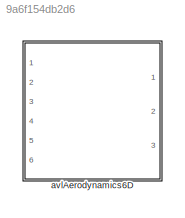
MODEL slx_9a6f154db2d6
KIND library
CONFIG AbsTol = auto
CONFIG EnableMultiTasking = off
CONFIG FixedStep = auto
CONFIG MaxStep = auto
CONFIG MinStep = auto
CONFIG RelTol = 1e-3
CONFIG SampleTimeConstraint = Unconstrained
CONFIG SolverName = VariableStepAuto
CONFIG StartTime = 0.0
CONFIG StopTime = 10.0
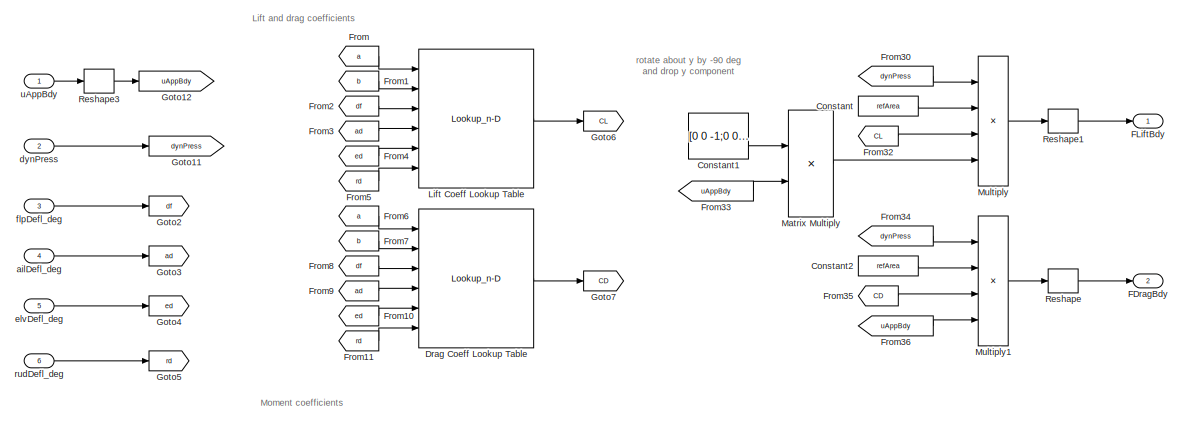
[diagram: avlAerodynamics6D - part 1/2, full width, top band]
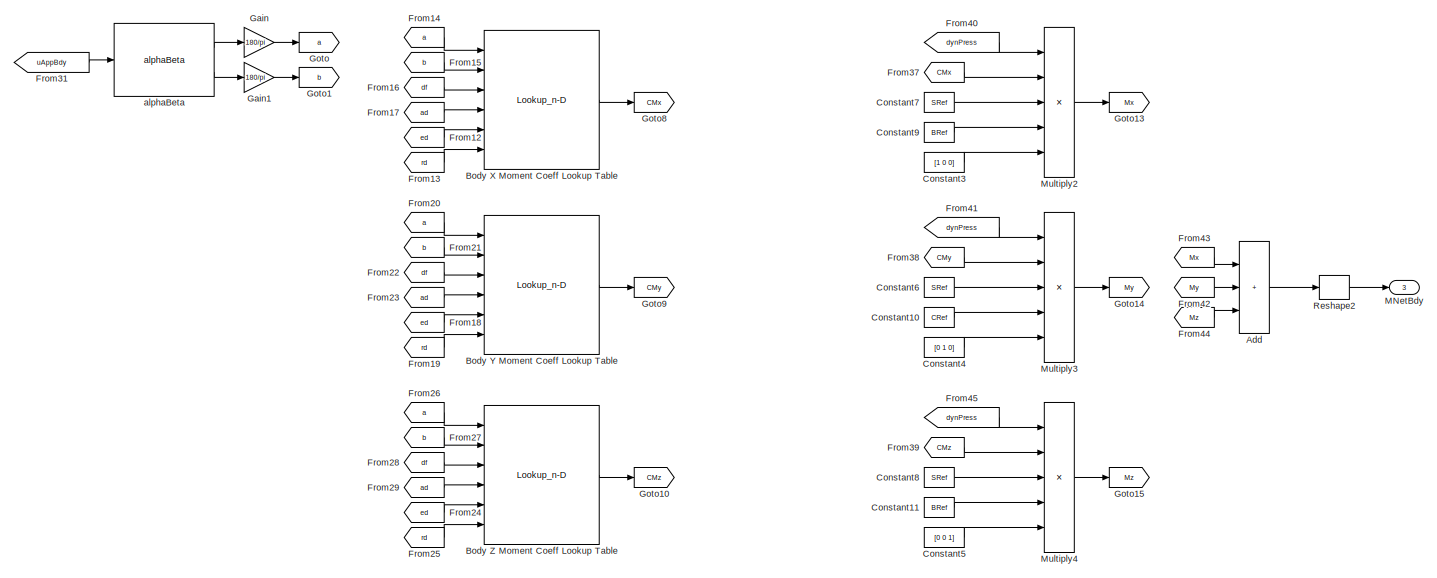
[diagram: avlAerodynamics6D - part 2/2, full width, bottom band]
BLOCK [SubSystem] avlAerodynamics6D
  Ports = [6, 3]
  RequestExecContextInheritance = off
BLOCK [Sum] avlAerodynamics6D/Add
  IconShape = rectangular
  Inputs = +++
  Ports = [3, 1]
BLOCK [Lookup_n-D] avlAerodynamics6D/Body X Moment Coeff Lookup Table
  BreakpointsForDimension3 = [5, 7]
  DataSpecification = Lookup table object
  InputPortMap = u0,u1,u2,u3,u4,u5
  InternalRulePriority = Speed
  LookupTableObject = CMxTable
  NumberOfTableDimensions = 6
  Ports = [6, 1]
  RndMeth = Simplest
  Table = reshape(repmat([4 5 6;16 19 20;10 18 23],1,2),[3,3,2])
BLOCK [Lookup_n-D] avlAerodynamics6D/Body Y Moment Coeff Lookup Table
  BreakpointsForDimension3 = [5, 7]
  DataSpecification = Lookup table object
  InputPortMap = u0,u1,u2,u3,u4,u5
  InternalRulePriority = Speed
  LookupTableObject = CMyTable
  NumberOfTableDimensions = 6
  Ports = [6, 1]
  RndMeth = Simplest
  Table = reshape(repmat([4 5 6;16 19 20;10 18 23],1,2),[3,3,2])
BLOCK [Lookup_n-D] avlAerodynamics6D/Body Z Moment Coeff Lookup Table
  BreakpointsForDimension3 = [5, 7]
  DataSpecification = Lookup table object
  InputPortMap = u0,u1,u2,u3,u4,u5
  InternalRulePriority = Speed
  LookupTableObject = CMzTable
  NumberOfTableDimensions = 6
  Ports = [6, 1]
  RndMeth = Simplest
  Table = reshape(repmat([4 5 6;16 19 20;10 18 23],1,2),[3,3,2])
BLOCK [Constant] avlAerodynamics6D/Constant
  Value = refArea
BLOCK [Constant] avlAerodynamics6D/Constant1
  Value = [0 0 -1;0 0 0;1 0 0]
BLOCK [Constant] avlAerodynamics6D/Constant10
  Value = CRef
BLOCK [Constant] avlAerodynamics6D/Constant11
  Value = BRef
BLOCK [Constant] avlAerodynamics6D/Constant2
  Value = refArea
BLOCK [Constant] avlAerodynamics6D/Constant3
  Value = [1 0 0]
BLOCK [Constant] avlAerodynamics6D/Constant4
  Value = [0 1 0]
BLOCK [Constant] avlAerodynamics6D/Constant5
  Value = [0 0 1]
BLOCK [Constant] avlAerodynamics6D/Constant6
  Value = SRef
BLOCK [Constant] avlAerodynamics6D/Constant7
  Value = SRef
BLOCK [Constant] avlAerodynamics6D/Constant8
  Value = SRef
BLOCK [Constant] avlAerodynamics6D/Constant9
  Value = BRef
BLOCK [Lookup_n-D] avlAerodynamics6D/Drag Coeff Lookup Table
  BreakpointsForDimension3 = [5, 7]
  DataSpecification = Lookup table object
  InputPortMap = u0,u1,u2,u3,u4,u5
  InternalRulePriority = Speed
  LookupTableObject = CDTable
  NumberOfTableDimensions = 6
  Ports = [6, 1]
  RndMeth = Simplest
  Table = reshape(repmat([4 5 6;16 19 20;10 18 23],1,2),[3,3,2])
BLOCK [Outport] avlAerodynamics6D/FDragBdy
  Port = 2
  VectorParamsAs1DForOutWhenUnconnected = off
BLOCK [Outport] avlAerodynamics6D/FLiftBdy
  VectorParamsAs1DForOutWhenUnconnected = off
BLOCK [From] avlAerodynamics6D/From
  GotoTag = a
BLOCK [From] avlAerodynamics6D/From1
  GotoTag = b
BLOCK [From] avlAerodynamics6D/From10
  GotoTag = ed
BLOCK [From] avlAerodynamics6D/From11
  GotoTag = rd
BLOCK [From] avlAerodynamics6D/From12
  GotoTag = ed
BLOCK [From] avlAerodynamics6D/From13
  GotoTag = rd
BLOCK [From] avlAerodynamics6D/From14
  GotoTag = a
BLOCK [From] avlAerodynamics6D/From15
  GotoTag = b
BLOCK [From] avlAerodynamics6D/From16
  GotoTag = df
BLOCK [From] avlAerodynamics6D/From17
  GotoTag = ad
BLOCK [From] avlAerodynamics6D/From18
  GotoTag = ed
BLOCK [From] avlAerodynamics6D/From19
  GotoTag = rd
BLOCK [From] avlAerodynamics6D/From2
  GotoTag = df
BLOCK [From] avlAerodynamics6D/From20
  GotoTag = a
BLOCK [From] avlAerodynamics6D/From21
  GotoTag = b
BLOCK [From] avlAerodynamics6D/From22
  GotoTag = df
BLOCK [From] avlAerodynamics6D/From23
  GotoTag = ad
BLOCK [From] avlAerodynamics6D/From24
  GotoTag = ed
BLOCK [From] avlAerodynamics6D/From25
  GotoTag = rd
BLOCK [From] avlAerodynamics6D/From26
  GotoTag = a
BLOCK [From] avlAerodynamics6D/From27
  GotoTag = b
BLOCK [From] avlAerodynamics6D/From28
  GotoTag = df
BLOCK [From] avlAerodynamics6D/From29
  GotoTag = ad
BLOCK [From] avlAerodynamics6D/From3
  GotoTag = ad
BLOCK [From] avlAerodynamics6D/From30
  GotoTag = dynPress
BLOCK [From] avlAerodynamics6D/From31
  GotoTag = uAppBdy
BLOCK [From] avlAerodynamics6D/From32
  GotoTag = CL
BLOCK [From] avlAerodynamics6D/From33
  GotoTag = uAppBdy
BLOCK [From] avlAerodynamics6D/From34
  GotoTag = dynPress
BLOCK [From] avlAerodynamics6D/From35
  GotoTag = CD
BLOCK [From] avlAerodynamics6D/From36
  GotoTag = uAppBdy
BLOCK [From] avlAerodynamics6D/From37
  GotoTag = CMx
BLOCK [From] avlAerodynamics6D/From38
  GotoTag = CMy
BLOCK [From] avlAerodynamics6D/From39
  GotoTag = CMz
BLOCK [From] avlAerodynamics6D/From4
  GotoTag = ed
BLOCK [From] avlAerodynamics6D/From40
  GotoTag = dynPress
BLOCK [From] avlAerodynamics6D/From41
  GotoTag = dynPress
BLOCK [From] avlAerodynamics6D/From42
  GotoTag = My
BLOCK [From] avlAerodynamics6D/From43
  GotoTag = Mx
BLOCK [From] avlAerodynamics6D/From44
  GotoTag = Mz
BLOCK [From] avlAerodynamics6D/From45
  GotoTag = dynPress
BLOCK [From] avlAerodynamics6D/From5
  GotoTag = rd
BLOCK [From] avlAerodynamics6D/From6
  GotoTag = a
BLOCK [From] avlAerodynamics6D/From7
  GotoTag = b
BLOCK [From] avlAerodynamics6D/From8
  GotoTag = df
BLOCK [From] avlAerodynamics6D/From9
  GotoTag = ad
BLOCK [Gain] avlAerodynamics6D/Gain
  Gain = 180/pi
BLOCK [Gain] avlAerodynamics6D/Gain1
  Gain = 180/pi
BLOCK [Goto] avlAerodynamics6D/Goto
  GotoTag = a
BLOCK [Goto] avlAerodynamics6D/Goto1
  GotoTag = b
BLOCK [Goto] avlAerodynamics6D/Goto10
  GotoTag = CMz
BLOCK [Goto] avlAerodynamics6D/Goto11
  GotoTag = dynPress
BLOCK [Goto] avlAerodynamics6D/Goto12
  GotoTag = uAppBdy
BLOCK [Goto] avlAerodynamics6D/Goto13
  GotoTag = Mx
BLOCK [Goto] avlAerodynamics6D/Goto14
  GotoTag = My
BLOCK [Goto] avlAerodynamics6D/Goto15
  GotoTag = Mz
BLOCK [Goto] avlAerodynamics6D/Goto2
  GotoTag = df
BLOCK [Goto] avlAerodynamics6D/Goto3
  GotoTag = ad
BLOCK [Goto] avlAerodynamics6D/Goto4
  GotoTag = ed
BLOCK [Goto] avlAerodynamics6D/Goto5
  GotoTag = rd
BLOCK [Goto] avlAerodynamics6D/Goto6
  GotoTag = CL
BLOCK [Goto] avlAerodynamics6D/Goto7
  GotoTag = CD
BLOCK [Goto] avlAerodynamics6D/Goto8
  GotoTag = CMx
BLOCK [Goto] avlAerodynamics6D/Goto9
  GotoTag = CMy
BLOCK [Lookup_n-D] avlAerodynamics6D/Lift Coeff Lookup Table
  BreakpointsForDimension3 = [5, 7]
  DataSpecification = Lookup table object
  InputPortMap = u0,u1,u2,u3,u4,u5
  InternalRulePriority = Speed
  LookupTableObject = CLTable
  NumberOfTableDimensions = 6
  Ports = [6, 1]
  RndMeth = Simplest
  Table = reshape(repmat([4 5 6;16 19 20;10 18 23],1,2),[3,3,2])
BLOCK [Outport] avlAerodynamics6D/MNetBdy
  Port = 3
  VectorParamsAs1DForOutWhenUnconnected = off
BLOCK [Product] avlAerodynamics6D/Matrix Multiply
  Multiplication = Matrix(*)
  Ports = [2, 1]
BLOCK [Product] avlAerodynamics6D/Multiply
  Inputs = 4
  Ports = [4, 1]
BLOCK [Product] avlAerodynamics6D/Multiply1
  Inputs = 4
  Ports = [4, 1]
BLOCK [Product] avlAerodynamics6D/Multiply2
  Inputs = 5
  Ports = [5, 1]
BLOCK [Product] avlAerodynamics6D/Multiply3
  Inputs = 5
  Ports = [5, 1]
BLOCK [Product] avlAerodynamics6D/Multiply4
  Inputs = 5
  Ports = [5, 1]
BLOCK [Reshape] avlAerodynamics6D/Reshape
  OutputDimensionality = Column vector (2-D)
  Ports = [1, 1]
BLOCK [Reshape] avlAerodynamics6D/Reshape1
  OutputDimensionality = Column vector (2-D)
  Ports = [1, 1]
BLOCK [Reshape] avlAerodynamics6D/Reshape2
  OutputDimensionality = Column vector (2-D)
  Ports = [1, 1]
BLOCK [Reshape] avlAerodynamics6D/Reshape3
  OutputDimensionality = Column vector (2-D)
  Ports = [1, 1]
BLOCK [Inport] avlAerodynamics6D/ailDefl_deg
  Port = 4
BLOCK [Reference] avlAerodynamics6D/alphaBeta  REF=alphaBeta_ul/alphaBeta
  Ports = [1, 2]
  SourceBlock = alphaBeta_ul/alphaBeta
  SourceType = SubSystem
BLOCK [Inport] avlAerodynamics6D/dynPress
  Port = 2
BLOCK [Inport] avlAerodynamics6D/elvDefl_deg
  Port = 5
BLOCK [Inport] avlAerodynamics6D/flpDefl_deg
  Port = 3
BLOCK [Inport] avlAerodynamics6D/rudDefl_deg
  Port = 6
BLOCK [Inport] avlAerodynamics6D/uAppBdy
ANNOTATION avlAerodynamics6D: Lift and drag coefficients
ANNOTATION avlAerodynamics6D: Moment coefficients
ANNOTATION avlAerodynamics6D: rotate about y by -90 deg and drop y component
LINE avlAerodynamics6D/Add:1 -> avlAerodynamics6D/Reshape2:1
LINE avlAerodynamics6D/Body X Moment Coeff Lookup Table:1 -> avlAerodynamics6D/Goto8:1
LINE avlAerodynamics6D/Body Y Moment Coeff Lookup Table:1 -> avlAerodynamics6D/Goto9:1
LINE avlAerodynamics6D/Body Z Moment Coeff Lookup Table:1 -> avlAerodynamics6D/Goto10:1
LINE avlAerodynamics6D/Constant10:1 -> avlAerodynamics6D/Multiply3:4
LINE avlAerodynamics6D/Constant11:1 -> avlAerodynamics6D/Multiply4:4
LINE avlAerodynamics6D/Constant1:1 -> avlAerodynamics6D/Matrix Multiply:1
LINE avlAerodynamics6D/Constant2:1 -> avlAerodynamics6D/Multiply1:2
LINE avlAerodynamics6D/Constant3:1 -> avlAerodynamics6D/Multiply2:5
LINE avlAerodynamics6D/Constant4:1 -> avlAerodynamics6D/Multiply3:5
LINE avlAerodynamics6D/Constant5:1 -> avlAerodynamics6D/Multiply4:5
LINE avlAerodynamics6D/Constant6:1 -> avlAerodynamics6D/Multiply3:3
LINE avlAerodynamics6D/Constant7:1 -> avlAerodynamics6D/Multiply2:3
LINE avlAerodynamics6D/Constant8:1 -> avlAerodynamics6D/Multiply4:3
LINE avlAerodynamics6D/Constant9:1 -> avlAerodynamics6D/Multiply2:4
LINE avlAerodynamics6D/Constant:1 -> avlAerodynamics6D/Multiply:2
LINE avlAerodynamics6D/Drag Coeff Lookup Table:1 -> avlAerodynamics6D/Goto7:1
LINE avlAerodynamics6D/From10:1 -> avlAerodynamics6D/Drag Coeff Lookup Table:5
LINE avlAerodynamics6D/From11:1 -> avlAerodynamics6D/Drag Coeff Lookup Table:6
LINE avlAerodynamics6D/From12:1 -> avlAerodynamics6D/Body X Moment Coeff Lookup Table:5
LINE avlAerodynamics6D/From13:1 -> avlAerodynamics6D/Body X Moment Coeff Lookup Table:6
LINE avlAerodynamics6D/From14:1 -> avlAerodynamics6D/Body X Moment Coeff Lookup Table:1
LINE avlAerodynamics6D/From15:1 -> avlAerodynamics6D/Body X Moment Coeff Lookup Table:2
LINE avlAerodynamics6D/From16:1 -> avlAerodynamics6D/Body X Moment Coeff Lookup Table:3
LINE avlAerodynamics6D/From17:1 -> avlAerodynamics6D/Body X Moment Coeff Lookup Table:4
LINE avlAerodynamics6D/From18:1 -> avlAerodynamics6D/Body Y Moment Coeff Lookup Table:5
LINE avlAerodynamics6D/From19:1 -> avlAerodynamics6D/Body Y Moment Coeff Lookup Table:6
LINE avlAerodynamics6D/From1:1 -> avlAerodynamics6D/Lift Coeff Lookup Table:2
LINE avlAerodynamics6D/From20:1 -> avlAerodynamics6D/Body Y Moment Coeff Lookup Table:1
LINE avlAerodynamics6D/From21:1 -> avlAerodynamics6D/Body Y Moment Coeff Lookup Table:2
LINE avlAerodynamics6D/From22:1 -> avlAerodynamics6D/Body Y Moment Coeff Lookup Table:3
LINE avlAerodynamics6D/From23:1 -> avlAerodynamics6D/Body Y Moment Coeff Lookup Table:4
LINE avlAerodynamics6D/From24:1 -> avlAerodynamics6D/Body Z Moment Coeff Lookup Table:5
LINE avlAerodynamics6D/From25:1 -> avlAerodynamics6D/Body Z Moment Coeff Lookup Table:6
LINE avlAerodynamics6D/From26:1 -> avlAerodynamics6D/Body Z Moment Coeff Lookup Table:1
LINE avlAerodynamics6D/From27:1 -> avlAerodynamics6D/Body Z Moment Coeff Lookup Table:2
LINE avlAerodynamics6D/From28:1 -> avlAerodynamics6D/Body Z Moment Coeff Lookup Table:3
LINE avlAerodynamics6D/From29:1 -> avlAerodynamics6D/Body Z Moment Coeff Lookup Table:4
LINE avlAerodynamics6D/From2:1 -> avlAerodynamics6D/Lift Coeff Lookup Table:3
LINE avlAerodynamics6D/From30:1 -> avlAerodynamics6D/Multiply:1
LINE avlAerodynamics6D/From31:1 -> avlAerodynamics6D/alphaBeta:1
LINE avlAerodynamics6D/From32:1 -> avlAerodynamics6D/Multiply:3
LINE avlAerodynamics6D/From33:1 -> avlAerodynamics6D/Matrix Multiply:2
LINE avlAerodynamics6D/From34:1 -> avlAerodynamics6D/Multiply1:1
LINE avlAerodynamics6D/From35:1 -> avlAerodynamics6D/Multiply1:3
LINE avlAerodynamics6D/From36:1 -> avlAerodynamics6D/Multiply1:4
LINE avlAerodynamics6D/From37:1 -> avlAerodynamics6D/Multiply2:2
LINE avlAerodynamics6D/From38:1 -> avlAerodynamics6D/Multiply3:2
LINE avlAerodynamics6D/From39:1 -> avlAerodynamics6D/Multiply4:2
LINE avlAerodynamics6D/From3:1 -> avlAerodynamics6D/Lift Coeff Lookup Table:4
LINE avlAerodynamics6D/From40:1 -> avlAerodynamics6D/Multiply2:1
LINE avlAerodynamics6D/From41:1 -> avlAerodynamics6D/Multiply3:1
LINE avlAerodynamics6D/From42:1 -> avlAerodynamics6D/Add:2
LINE avlAerodynamics6D/From43:1 -> avlAerodynamics6D/Add:1
LINE avlAerodynamics6D/From44:1 -> avlAerodynamics6D/Add:3
LINE avlAerodynamics6D/From45:1 -> avlAerodynamics6D/Multiply4:1
LINE avlAerodynamics6D/From4:1 -> avlAerodynamics6D/Lift Coeff Lookup Table:5
LINE avlAerodynamics6D/From5:1 -> avlAerodynamics6D/Lift Coeff Lookup Table:6
LINE avlAerodynamics6D/From6:1 -> avlAerodynamics6D/Drag Coeff Lookup Table:1
LINE avlAerodynamics6D/From7:1 -> avlAerodynamics6D/Drag Coeff Lookup Table:2
LINE avlAerodynamics6D/From8:1 -> avlAerodynamics6D/Drag Coeff Lookup Table:3
LINE avlAerodynamics6D/From9:1 -> avlAerodynamics6D/Drag Coeff Lookup Table:4
LINE avlAerodynamics6D/From:1 -> avlAerodynamics6D/Lift Coeff Lookup Table:1
LINE avlAerodynamics6D/Gain1:1 -> avlAerodynamics6D/Goto1:1
LINE avlAerodynamics6D/Gain:1 -> avlAerodynamics6D/Goto:1
LINE avlAerodynamics6D/Lift Coeff Lookup Table:1 -> avlAerodynamics6D/Goto6:1
LINE avlAerodynamics6D/Matrix Multiply:1 -> avlAerodynamics6D/Multiply:4
LINE avlAerodynamics6D/Multiply1:1 -> avlAerodynamics6D/Reshape:1
LINE avlAerodynamics6D/Multiply2:1 -> avlAerodynamics6D/Goto13:1
LINE avlAerodynamics6D/Multiply3:1 -> avlAerodynamics6D/Goto14:1
LINE avlAerodynamics6D/Multiply4:1 -> avlAerodynamics6D/Goto15:1
LINE avlAerodynamics6D/Multiply:1 -> avlAerodynamics6D/Reshape1:1
LINE avlAerodynamics6D/Reshape1:1 -> avlAerodynamics6D/FLiftBdy:1
LINE avlAerodynamics6D/Reshape2:1 -> avlAerodynamics6D/MNetBdy:1
LINE avlAerodynamics6D/Reshape3:1 -> avlAerodynamics6D/Goto12:1
LINE avlAerodynamics6D/Reshape:1 -> avlAerodynamics6D/FDragBdy:1
LINE avlAerodynamics6D/ailDefl_deg:1 -> avlAerodynamics6D/Goto3:1
LINE avlAerodynamics6D/alphaBeta:1 -> avlAerodynamics6D/Gain:1
LINE avlAerodynamics6D/alphaBeta:2 -> avlAerodynamics6D/Gain1:1
LINE avlAerodynamics6D/dynPress:1 -> avlAerodynamics6D/Goto11:1
LINE avlAerodynamics6D/elvDefl_deg:1 -> avlAerodynamics6D/Goto4:1
LINE avlAerodynamics6D/flpDefl_deg:1 -> avlAerodynamics6D/Goto2:1
LINE avlAerodynamics6D/rudDefl_deg:1 -> avlAerodynamics6D/Goto5:1
LINE avlAerodynamics6D/uAppBdy:1 -> avlAerodynamics6D/Reshape3:1
